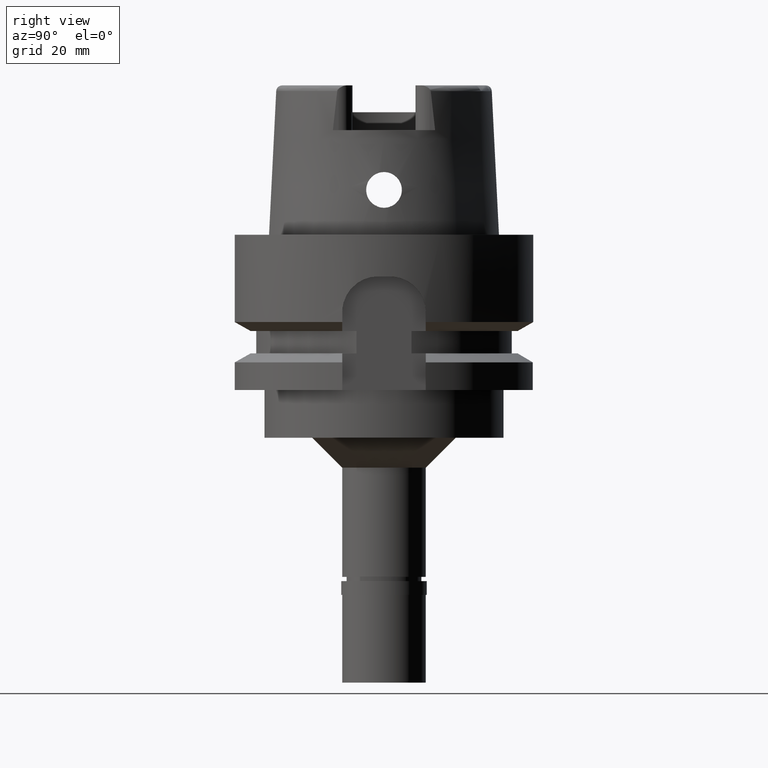
[diagram: clean part render]
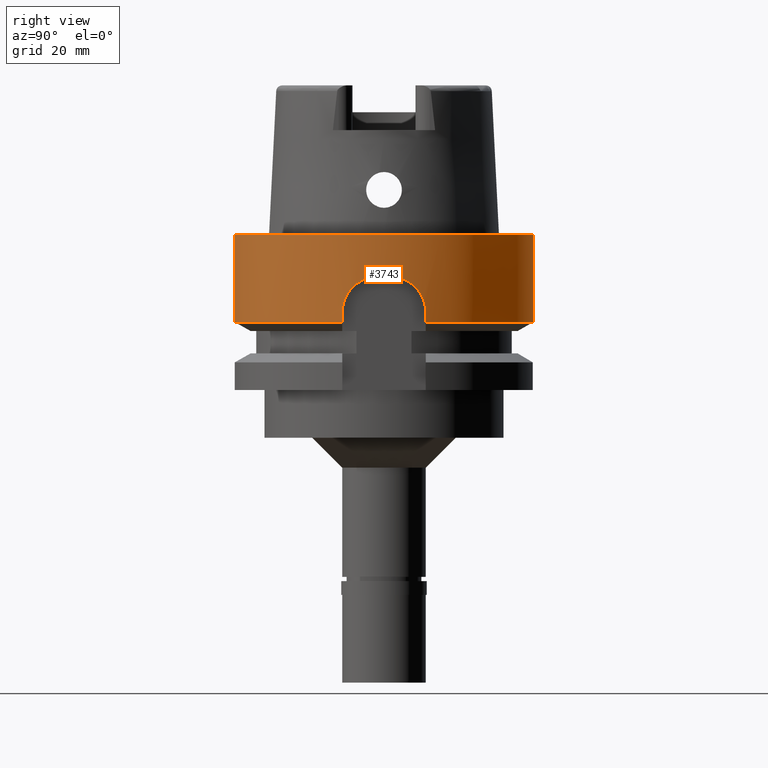
[diagram: same view with one face highlighted and labeled with its STEP entity id]
A machine part, right view. The second image highlights one B-rep face of the part: STEP entity #3743.
In plain terms, the highlighted cylindrical surface (partial cylindrical patch) has radius 25 mm, axis along (0, 0, 1).
Its self-contained STEP definition (entity closure, byte-faithful):
#35 = CARTESIAN_POINT ( 'NONE',  ( 24.49976834315936003, -4.975370415141710190, -8.505497914834512230 ) ) ;
#60 = CARTESIAN_POINT ( 'NONE',  ( 24.78681772240811299, -3.257869136187010017, -7.441025747308787963 ) ) ;
#89 = CARTESIAN_POINT ( 'NONE',  ( 24.44733996659402919, -5.227573510880964669, -8.742342618733047743 ) ) ;
#98 = CARTESIAN_POINT ( 'NONE',  ( 24.16478723087945824, 6.408940469442752530, -10.39574968277632649 ) ) ;
#111 = CARTESIAN_POINT ( 'NONE',  ( 24.73820855521864104, -3.612373743797532732, -7.594934771562349418 ) ) ;
#134 = CARTESIAN_POINT ( 'NONE',  ( 24.27475160664534570, -5.977999943536315364, -9.650441910935986911 ) ) ;
#143 = CARTESIAN_POINT ( 'NONE',  ( 24.07828217597917586, 6.726644984477383460, -11.20684726574168266 ) ) ;
#146 = EDGE_CURVE ( 'NONE', #4513, #2223, #3108, .T. ) ;
#165 = CARTESIAN_POINT ( 'NONE',  ( 24.57368201287003728, 4.595931759735846001, -8.195942548775592584 ) ) ;
#174 = CARTESIAN_POINT ( 'NONE',  ( 0.0000000000000000000, -25.00000000000000000, 1.705302565823999875E-13 ) ) ;
#188 = CARTESIAN_POINT ( 'NONE',  ( 24.73359756307678836, 3.640578850361009255, -7.611490110207105531 ) ) ;
#212 = CARTESIAN_POINT ( 'NONE',  ( 24.43139443800401622, 5.301625337286857587, -8.817129982764763341 ) ) ;
#234 = CARTESIAN_POINT ( 'NONE',  ( 24.25553976893024455, 6.055546427713103697, -9.768486157417470395 ) ) ;
#256 = CARTESIAN_POINT ( 'NONE',  ( 24.61707281500941136, 4.358870092586039746, -8.028280784630224431 ) ) ;
#279 = ORIENTED_EDGE ( 'NONE', *, *, #4540, .F. ) ;
#284 = CARTESIAN_POINT ( 'NONE',  ( 24.00000000000000000, -7.000000000000000000, -13.00000000000000000 ) ) ;
#337 = ORIENTED_EDGE ( 'NONE', *, *, #1914, .T. ) ;
#401 = CARTESIAN_POINT ( 'NONE',  ( 24.44492360378943019, -5.238863757831594192, -8.753584064928743302 ) ) ;
#422 = AXIS2_PLACEMENT_3D ( 'NONE', #1738, #4080, #3705 ) ;
#450 = CARTESIAN_POINT ( 'NONE',  ( 23.99999968298000042, 7.000001086911000314, -14.62249198428999897 ) ) ;
#479 = CARTESIAN_POINT ( 'NONE',  ( 24.62585658868001204, -4.308969540914367791, -7.994922160852345527 ) ) ;
#487 = CARTESIAN_POINT ( 'NONE',  ( 24.09100302957578776, 6.680690265659298355, -11.06416073426809632 ) ) ;
#563 = CARTESIAN_POINT ( 'NONE',  ( 24.61518663565398057, 4.369489492004123399, -8.035468269816069764 ) ) ;
#591 = CARTESIAN_POINT ( 'NONE',  ( 24.26752748322563136, 6.007260208036217186, -9.694343037379896444 ) ) ;
#613 = CARTESIAN_POINT ( 'NONE',  ( 24.39592589661699407, 5.462881369261142872, -8.989308958684217643 ) ) ;
#635 = CARTESIAN_POINT ( 'NONE',  ( 24.26182199742563128, 6.030283037842108840, -9.729439904414505236 ) ) ;
#726 = DIRECTION ( 'NONE',  ( 0.0000000000000000000, 1.000000000000000000, 0.0000000000000000000 ) ) ;
#775 = CARTESIAN_POINT ( 'NONE',  ( 24.44956991268546531, -5.217135162015882344, -8.731986590088190781 ) ) ;
#802 = CARTESIAN_POINT ( 'NONE',  ( 24.62240569863390149, -4.328644044090706799, -8.007993470213776277 ) ) ;
#813 = CARTESIAN_POINT ( 'NONE',  ( 24.12265226869237011, 6.564886857588037472, -10.75674444249928463 ) ) ;
#815 = ORIENTED_EDGE ( 'NONE', *, *, #1052, .T. ) ;
#828 = CARTESIAN_POINT ( 'NONE',  ( 24.27306196251224080, -5.984856610900561869, -9.660651245285290400 ) ) ;
#850 = CARTESIAN_POINT ( 'NONE',  ( 24.24254505024323336, -6.108586802424047946, -9.845801112750958595 ) ) ;
#877 = CARTESIAN_POINT ( 'NONE',  ( 24.68373649204560749, -3.964636135385804838, -7.782533813648766063 ) ) ;
#886 = CARTESIAN_POINT ( 'NONE',  ( 24.04175049385555951, 6.856984649559718648, -11.68346873648718365 ) ) ;
#892 = VERTEX_POINT ( 'NONE', #450 ) ;
#899 = CARTESIAN_POINT ( 'NONE',  ( 23.99999999999998934, -6.999999999999995559, -12.25822629758427240 ) ) ;
#915 = VERTEX_POINT ( 'NONE', #174 ) ;
#931 = CARTESIAN_POINT ( 'NONE',  ( 24.26635416346756102, 6.012001013920500903, -9.701532109083029098 ) ) ;
#956 = CARTESIAN_POINT ( 'NONE',  ( 24.95045872979395796, 1.737740693375197987, -6.999999999999998224 ) ) ;
#979 = CARTESIAN_POINT ( 'NONE',  ( 24.68007762913433467, 3.990162489318320294, -7.794382720648959761 ) ) ;
#1052 = EDGE_CURVE ( 'NONE', #2230, #2617, #4052, .T. ) ;
#1082 = EDGE_CURVE ( 'NONE', #1186, #1974, #1451, .T. ) ;
#1123 = CARTESIAN_POINT ( 'NONE',  ( 0.0000000000000000000, 0.0000000000000000000, -75.80000000000001137 ) ) ;
#1148 = CARTESIAN_POINT ( 'NONE',  ( 24.62937692026105196, -4.288813567630589851, -7.981629983207127133 ) ) ;
#1177 = CARTESIAN_POINT ( 'NONE',  ( 24.37503307411357056, -5.557040894337744952, -9.092058217912974527 ) ) ;
#1186 = VERTEX_POINT ( 'NONE', #1806 ) ;
#1203 = CARTESIAN_POINT ( 'NONE',  ( 24.82614997614106400, -2.944943980035183984, -7.322365542442169861 ) ) ;
#1204 = CARTESIAN_POINT ( 'NONE',  ( 0.0000000000000000000, 0.0000000000000000000, -14.62250092523999889 ) ) ;
#1224 = ORIENTED_EDGE ( 'NONE', *, *, #3748, .F. ) ;
#1228 = CARTESIAN_POINT ( 'NONE',  ( 24.69787554543405506, -3.875445489080989958, -7.732968586142576761 ) ) ;
#1276 = DIRECTION ( 'NONE',  ( 0.0000000000000000000, 0.0000000000000000000, 1.000000000000000000 ) ) ;
#1278 = CARTESIAN_POINT ( 'NONE',  ( 24.12982146092184266, -6.538473428260290987, -10.69230839568394487 ) ) ;
#1293 = VECTOR ( 'NONE', #2330, 1000.000000000000000 ) ;
#1301 = EDGE_CURVE ( 'NONE', #4513, #915, #3897, .T. ) ;
#1308 = CARTESIAN_POINT ( 'NONE',  ( 24.65013648081668762, 4.172038857600788297, -7.902149194659578768 ) ) ;
#1328 = CARTESIAN_POINT ( 'NONE',  ( 24.00000000000000000, 7.000000000000000000, -13.00000000000000000 ) ) ;
#1359 = CARTESIAN_POINT ( 'NONE',  ( 24.42363174021783223, 5.337355071070049028, -8.854056539304767881 ) ) ;
#1380 = CARTESIAN_POINT ( 'NONE',  ( 24.60485367648089650, 4.426901382991021983, -8.074867062834790943 ) ) ;
#1402 = CARTESIAN_POINT ( 'NONE',  ( 24.35643640996098114, 5.636867680233528688, -9.190926596500444745 ) ) ;
#1445 = DIRECTION ( 'NONE',  ( 0.0000000000000000000, 0.0000000000000000000, 1.000000000000000000 ) ) ;
#1451 = CIRCLE ( 'NONE', #422, 25.00000000000000000 ) ;
#1545 = ORIENTED_EDGE ( 'NONE', *, *, #3500, .F. ) ;
#1549 = CARTESIAN_POINT ( 'NONE',  ( 24.97999199359000144, -1.000000000000000000, -7.000000000000000000 ) ) ;
#1574 = CARTESIAN_POINT ( 'NONE',  ( 24.76231836123400143, -3.443036355120727698, -7.517123293938959172 ) ) ;
#1595 = CARTESIAN_POINT ( 'NONE',  ( 24.27343859005458526, -5.983328423445819055, -9.658374549124529196 ) ) ;
#1621 = CARTESIAN_POINT ( 'NONE',  ( 24.30007285430240671, -5.874493111050887784, -9.501256002420229052 ) ) ;
#1639 = CARTESIAN_POINT ( 'NONE',  ( 0.0000000000000000000, 0.0000000000000000000, -7.000000000000000000 ) ) ;
#1643 = CARTESIAN_POINT ( 'NONE',  ( 24.13578132908411078, -6.516449547820400312, -10.63998027985964256 ) ) ;
#1654 = CARTESIAN_POINT ( 'NONE',  ( 24.11626126291906047, 6.588376250135804746, -10.81569767662717751 ) ) ;
#1678 = CARTESIAN_POINT ( 'NONE',  ( 24.61631190345793385, 4.363160825889100813, -8.031181524561182172 ) ) ;
#1724 = CARTESIAN_POINT ( 'NONE',  ( 24.26453813046440189, 6.019330588570353413, -9.712696388589526109 ) ) ;
#1738 = CARTESIAN_POINT ( 'NONE',  ( 0.0000000000000000000, 0.0000000000000000000, -14.62250092523999889 ) ) ;
#1741 = CARTESIAN_POINT ( 'NONE',  ( 24.00000006376999906, -6.999999781360999762, -14.62250272373000115 ) ) ;
#1747 = CARTESIAN_POINT ( 'NONE',  ( 24.43531523308328701, 5.283503562752096094, -8.798608114580616757 ) ) ;
#1764 = AXIS2_PLACEMENT_3D ( 'NONE', #1639, #1276, #2742 ) ;
#1773 = CARTESIAN_POINT ( 'NONE',  ( 0.0000000000000000000, 25.00000000000000000, 1.042129345780999972E-13 ) ) ;
#1797 = AXIS2_PLACEMENT_3D ( 'NONE', #1204, #3075, #4594 ) ;
#1806 = CARTESIAN_POINT ( 'NONE',  ( 0.0000000000000000000, -25.00000000000000000, -14.62250092523999889 ) ) ;
#1818 = CARTESIAN_POINT ( 'NONE',  ( 24.00000000000000000, -7.000000000000000000, -13.00000000000000000 ) ) ;
#1842 = AXIS2_PLACEMENT_3D ( 'NONE', #4106, #3461, #4211 ) ;
#1895 = DIRECTION ( 'NONE',  ( 3.930346202659920987E-08, 1.347538642260972339E-07, -0.9999999999999901190 ) ) ;
#1914 = EDGE_CURVE ( 'NONE', #915, #1186, #3497, .T. ) ;
#1945 = CARTESIAN_POINT ( 'NONE',  ( 24.80539490120072443, -3.113606960106523935, -7.384190578092518109 ) ) ;
#1966 = CARTESIAN_POINT ( 'NONE',  ( 24.33197961779064400, -5.741531318263868755, -9.322019789458495964 ) ) ;
#1974 = VERTEX_POINT ( 'NONE', #1741 ) ;
#1983 = CARTESIAN_POINT ( 'NONE',  ( 0.0000000000000000000, 25.00000000000000000, -14.62250092523999889 ) ) ;
#1989 = CARTESIAN_POINT ( 'NONE',  ( 24.61099723569059705, -4.393543379025551587, -8.051277459780511236 ) ) ;
#1990 = ORIENTED_EDGE ( 'NONE', *, *, #146, .F. ) ;
#2011 = CARTESIAN_POINT ( 'NONE',  ( 24.48948730041317035, -5.026049424537584187, -8.550723678833557884 ) ) ;
#2035 = CARTESIAN_POINT ( 'NONE',  ( 24.13219255731635826, -6.529715590263100111, -10.67140086168156898 ) ) ;
#2067 = CARTESIAN_POINT ( 'NONE',  ( 24.75181184918648114, 3.514033535527325114, -7.551898564032934580 ) ) ;
#2093 = LINE ( 'NONE', #2879, #2972 ) ;
#2113 = CARTESIAN_POINT ( 'NONE',  ( 24.61684845404169764, 4.360136316353510288, -8.029136315259927770 ) ) ;
#2136 = CARTESIAN_POINT ( 'NONE',  ( 24.28899826368992265, 5.920446051620244177, -9.563067931018800039 ) ) ;
#2162 = CARTESIAN_POINT ( 'NONE',  ( 24.43700402658573267, 5.275681739750440968, -8.790658065680613475 ) ) ;
#2189 = DIRECTION ( 'NONE',  ( 1.953878942450914069E-07, -6.699020576297705651E-07, 0.9999999999997565281 ) ) ;
#2223 = VERTEX_POINT ( 'NONE', #1983 ) ;
#2230 = VERTEX_POINT ( 'NONE', #3513 ) ;
#2291 = CARTESIAN_POINT ( 'NONE',  ( 24.40770649510969292, -5.412418141144514472, -8.927047926510585540 ) ) ;
#2314 = CARTESIAN_POINT ( 'NONE',  ( 24.17953073293679012, -6.352578549610839787, -10.28712108126188163 ) ) ;
#2328 = CARTESIAN_POINT ( 'NONE',  ( 24.14366827936574822, 6.487500788033881527, -10.56698582146045773 ) ) ;
#2330 = DIRECTION ( 'NONE',  ( 0.0000000000000000000, 2.721175632404000057E-14, -1.000000000000000000 ) ) ;
#2342 = CARTESIAN_POINT ( 'NONE',  ( 24.78995961278983984, -3.233846546263416943, -7.431328938967872055 ) ) ;
#2365 = CARTESIAN_POINT ( 'NONE',  ( 24.31862124487821220, -5.797622612877629145, -9.395781934241842492 ) ) ;
#2385 = CARTESIAN_POINT ( 'NONE',  ( 24.66148583677253825, -4.100165809404503925, -7.862712081317833501 ) ) ;
#2433 = CIRCLE ( 'NONE', #1797, 25.00000000000000000 ) ;
#2444 = CARTESIAN_POINT ( 'NONE',  ( 24.61722114692511454, 4.358032612382026549, -8.027715089667053050 ) ) ;
#2532 = CARTESIAN_POINT ( 'NONE',  ( 24.77050569022696536, 3.379757843077887181, -7.492041238338908116 ) ) ;
#2617 = VERTEX_POINT ( 'NONE', #3777 ) ;
#2643 = CARTESIAN_POINT ( 'NONE',  ( 24.46485041803108729, -5.144988248992125257, -8.661616045563340194 ) ) ;
#2676 = CARTESIAN_POINT ( 'NONE',  ( 24.29117095121268832, -5.911111131118361506, -9.552703420486878372 ) ) ;
#2686 = CARTESIAN_POINT ( 'NONE',  ( 24.10755644803804643, 6.620288078691583422, -10.89837205391708608 ) ) ;
#2698 = CARTESIAN_POINT ( 'NONE',  ( 24.79464591641103155, -3.197799715232858109, -7.416914198815999448 ) ) ;
#2723 = CARTESIAN_POINT ( 'NONE',  ( 24.62282406644586885, -4.326263297490975823, -8.006406556889441362 ) ) ;
#2737 = AXIS2_PLACEMENT_3D ( 'NONE', #1123, #1445, #726 ) ;
#2742 = DIRECTION ( 'NONE',  ( 0.9991996797437435740, -0.04000000000000173556, 0.0000000000000000000 ) ) ;
#2744 = CARTESIAN_POINT ( 'NONE',  ( 24.59050670406340799, -4.507443829634865118, -8.127975246691514499 ) ) ;
#2766 = CARTESIAN_POINT ( 'NONE',  ( 24.12881043432524564, -6.542205126381874791, -10.70127699850182523 ) ) ;
#2797 = CARTESIAN_POINT ( 'NONE',  ( 24.52915569033836718, 4.829453847981345582, -8.376791580779887170 ) ) ;
#2827 = CARTESIAN_POINT ( 'NONE',  ( 24.77923755986355658, 3.315032852010245890, -7.464598822068242434 ) ) ;
#2834 = EDGE_CURVE ( 'NONE', #3584, #2617, #4609, .T. ) ;
#2875 = CARTESIAN_POINT ( 'NONE',  ( 24.77870431881740032, 3.319015853266849447, -7.466267501301959264 ) ) ;
#2879 = CARTESIAN_POINT ( 'NONE',  ( 23.99999968298000042, 7.000001086911000314, -14.62249198428999897 ) ) ;
#2900 = CARTESIAN_POINT ( 'NONE',  ( 24.37165516327134185, 5.570743180115432125, -9.111540438504757589 ) ) ;
#2942 = LINE ( 'NONE', #1818, #3932 ) ;
#2972 = VECTOR ( 'NONE', #2189, 1000.000000000000114 ) ;
#3013 = CARTESIAN_POINT ( 'NONE',  ( 24.89262747393343744, -2.317573422156474550, -7.143204667709824207 ) ) ;
#3042 = CARTESIAN_POINT ( 'NONE',  ( 24.87400152295493072, -2.510490911545676163, -7.189753839242210454 ) ) ;
#3054 = CARTESIAN_POINT ( 'NONE',  ( 24.05479752318541742, 6.810942333365714418, -11.49255606247847794 ) ) ;
#3072 = CARTESIAN_POINT ( 'NONE',  ( 24.63636059493613573, -4.248568909888609468, -7.955387760273475273 ) ) ;
#3075 = DIRECTION ( 'NONE',  ( 0.0000000000000000000, 0.0000000000000000000, 1.000000000000000000 ) ) ;
#3083 = CARTESIAN_POINT ( 'NONE',  ( 24.00000000000000355, 7.000000000000001776, -12.63209746117796684 ) ) ;
#3094 = CARTESIAN_POINT ( 'NONE',  ( 24.16816155303371616, -6.395594435115191878, -10.37388014400012004 ) ) ;
#3106 = CARTESIAN_POINT ( 'NONE',  ( 24.21310497976478615, 6.223440737563173286, -10.04598082697079064 ) ) ;
#3107 = VECTOR ( 'NONE', #3825, 1000.000000000000000 ) ;
#3108 = LINE ( 'NONE', #4304, #1293 ) ;
#3117 = CARTESIAN_POINT ( 'NONE',  ( 24.96538069015562655, -1.364990242893802774, -6.999999999999999112 ) ) ;
#3141 = CARTESIAN_POINT ( 'NONE',  ( 24.00000000000000000, -7.000000000000000000, -13.00000000000000000 ) ) ;
#3176 = CARTESIAN_POINT ( 'NONE',  ( 24.61272743350044578, 4.383262867383519001, -8.044830770065846792 ) ) ;
#3202 = CARTESIAN_POINT ( 'NONE',  ( 24.43848054169075823, 5.268837928141214988, -8.783716167202822334 ) ) ;
#3223 = CARTESIAN_POINT ( 'NONE',  ( 24.48929649709187117, 5.032987650092667131, -8.545336435594043323 ) ) ;
#3230 = ORIENTED_EDGE ( 'NONE', *, *, #3959, .T. ) ;
#3243 = CARTESIAN_POINT ( 'NONE',  ( 24.31366535679015328, 5.819547938857620117, -9.420854016106481765 ) ) ;
#3300 = ORIENTED_EDGE ( 'NONE', *, *, #2834, .F. ) ;
#3418 = CARTESIAN_POINT ( 'NONE',  ( 24.47320600132064428, -5.104874869050860298, -8.623781798497400786 ) ) ;
#3447 = CARTESIAN_POINT ( 'NONE',  ( 24.94171314731219269, -1.742768139782008729, -7.033384490436712433 ) ) ;
#3461 = DIRECTION ( 'NONE',  ( 0.0000000000000000000, 0.0000000000000000000, -1.000000000000000000 ) ) ;
#3474 = CARTESIAN_POINT ( 'NONE',  ( 24.65009999033842192, -4.168365403932450697, -7.904258713826113336 ) ) ;
#3483 = CARTESIAN_POINT ( 'NONE',  ( 24.00000000000000000, 7.000000000000000000, -13.00000000000000000 ) ) ;
#3492 = CARTESIAN_POINT ( 'NONE',  ( 24.14438002010751205, -6.484580447339119758, -10.56625903523403487 ) ) ;
#3497 = LINE ( 'NONE', #4199, #3107 ) ;
#3500 = EDGE_CURVE ( 'NONE', #2230, #4500, #4340, .T. ) ;
#3503 = CARTESIAN_POINT ( 'NONE',  ( 24.23299742397199452, 6.145266036469727133, -9.913111920183078851 ) ) ;
#3513 = CARTESIAN_POINT ( 'NONE',  ( 24.97999199359000144, -1.000000000000000000, -7.000000000000000000 ) ) ;
#3518 = CARTESIAN_POINT ( 'NONE',  ( 24.27673276566271454, -5.969956207684957938, -9.638497712923854266 ) ) ;
#3573 = CARTESIAN_POINT ( 'NONE',  ( 24.77531560787262777, 3.344244367403894191, -7.476891347498856533 ) ) ;
#3584 = VERTEX_POINT ( 'NONE', #1328 ) ;
#3630 = CARTESIAN_POINT ( 'NONE',  ( 24.76065389379578008, 3.451457553144660739, -7.523331722291497492 ) ) ;
#3651 = CARTESIAN_POINT ( 'NONE',  ( 24.58598037582424567, 4.529831524006007193, -8.147729167384982318 ) ) ;
#3705 = DIRECTION ( 'NONE',  ( 0.0000000000000000000, -1.000000000000000000, 0.0000000000000000000 ) ) ;
#3742 = FACE_OUTER_BOUND ( 'NONE', #4885, .T. ) ;
#3743 = ADVANCED_FACE ( 'NONE', ( #3742 ), #4567, .T. ) ;
#3748 = EDGE_CURVE ( 'NONE', #4500, #1974, #2942, .T. ) ;
#3777 = CARTESIAN_POINT ( 'NONE',  ( 24.97999199359000144, 1.000000000000000000, -7.000000000000000000 ) ) ;
#3795 = CARTESIAN_POINT ( 'NONE',  ( 24.78498248375256097, -3.271806069009314033, -7.446711263345870968 ) ) ;
#3821 = CARTESIAN_POINT ( 'NONE',  ( 24.15213585281093955, -6.455661196408868818, -10.50240173134683452 ) ) ;
#3825 = DIRECTION ( 'NONE',  ( 0.0000000000000000000, -2.721175632404000057E-14, -1.000000000000000000 ) ) ;
#3831 = CARTESIAN_POINT ( 'NONE',  ( 24.20051888872195534, 6.272180099515099805, -10.13402613803601326 ) ) ;
#3843 = CARTESIAN_POINT ( 'NONE',  ( 24.62408929932863089, -4.319055675043729003, -8.001611220507490074 ) ) ;
#3868 = CARTESIAN_POINT ( 'NONE',  ( 24.84266650670876331, -2.800091476036682181, -7.275508189497014833 ) ) ;
#3888 = CARTESIAN_POINT ( 'NONE',  ( 24.52889200145145665, -4.829796449056758867, -8.379487595151823953 ) ) ;
#3897 = CIRCLE ( 'NONE', #1842, 25.00000000000000000 ) ;
#3932 = VECTOR ( 'NONE', #1895, 1000.000000000000114 ) ;
#3951 = CARTESIAN_POINT ( 'NONE',  ( 24.61026183186203653, 4.396972691383817633, -8.054221656971833454 ) ) ;
#3959 = EDGE_CURVE ( 'NONE', #892, #2223, #2433, .T. ) ;
#3972 = CARTESIAN_POINT ( 'NONE',  ( 24.40842191413486617, 5.406781503401139943, -8.927407888853458928 ) ) ;
#4004 = ORIENTED_EDGE ( 'NONE', *, *, #1082, .T. ) ;
#4052 = CIRCLE ( 'NONE', #1764, 25.00000000000001066 ) ;
#4080 = DIRECTION ( 'NONE',  ( 0.0000000000000000000, 0.0000000000000000000, 1.000000000000000000 ) ) ;
#4106 = CARTESIAN_POINT ( 'NONE',  ( 0.0000000000000000000, 0.0000000000000000000, 1.705302565823999875E-13 ) ) ;
#4195 = CARTESIAN_POINT ( 'NONE',  ( 24.21569441190970906, -6.213897600369896246, -10.02434739211579817 ) ) ;
#4199 = CARTESIAN_POINT ( 'NONE',  ( 0.0000000000000000000, -25.00000000000000000, 1.042129345780999972E-13 ) ) ;
#4205 = CARTESIAN_POINT ( 'NONE',  ( 24.12008363479304407, 6.574331768324217506, -10.78031836276791289 ) ) ;
#4211 = DIRECTION ( 'NONE',  ( 0.0000000000000000000, 1.000000000000000000, 0.0000000000000000000 ) ) ;
#4219 = CARTESIAN_POINT ( 'NONE',  ( 24.62333036312928769, -4.323380021418713248, -8.004487190232891791 ) ) ;
#4247 = CARTESIAN_POINT ( 'NONE',  ( 24.54601514705090182, -4.741403708292910579, -8.308348356357258879 ) ) ;
#4255 = CARTESIAN_POINT ( 'NONE',  ( 24.12410043170422824, 6.559557626833067090, -10.74357697569963577 ) ) ;
#4289 = CARTESIAN_POINT ( 'NONE',  ( 24.04249416390111449, -6.860531634964551984, -11.47342846683636886 ) ) ;
#4304 = CARTESIAN_POINT ( 'NONE',  ( 0.0000000000000000000, 25.00000000000000000, 1.042129345780999972E-13 ) ) ;
#4324 = CARTESIAN_POINT ( 'NONE',  ( 24.61711160898831352, 4.358651748939175619, -8.028132998981492463 ) ) ;
#4340 = B_SPLINE_CURVE_WITH_KNOTS ( 'NONE', 3,
 ( #1549, #3117, #3447, #3013, #3042, #3868, #1203, #1945, #2698, #2342, #60, #3795, #1574, #111, #1228, #877, #2385, #3474, #3072, #1148, #479, #3843, #4219, #2723, #802, #1989, #2744, #4247, #3888, #35, #2011, #3418, #2643, #4563, #775, #89, #4637, #401, #2291, #1177, #1966, #2365, #1621, #2676, #4591, #3518, #134, #1595, #828, #850, #4195, #2314, #3094, #3821, #3492, #1643, #2035, #1278, #2766, #4289, #899, #3141 ),
 .UNSPECIFIED., .F., .F.,
 ( 4, 2, 2, 1, 1, 1, 2, 2, 2, 2, 1, 1, 1, 1, 1, 2, 2, 2, 2, 2, 1, 1, 1, 2, 2, 2, 2, 1, 1, 1, 2, 2, 2, 2, 1, 1, 2, 2, 4 ),
 ( 0.0000000000000000000, 0.1249999999999628630, 0.1874999999999443778, 0.2187499999999351075, 0.2343749999999305833, 0.2421874999999283351, 0.2460937499999272249, 0.2499999999999261147, 0.3124999999999095723, 0.3437499999999014677, 0.3593749999998974154, 0.3671874999998955280, 0.3710937499998945288, 0.3730468749998940292, 0.3740234374998936961, 0.3745117187498934186, 0.3749999999998930855, 0.4374999999999019673, 0.4687499999999064082, 0.4843749999999085176, 0.4921874999999097944, 0.4960937499999104605, 0.4980468749999106270, 0.4990234374999106826, 0.4999999999999107381, 0.5624999999999168443, 0.5937499999999199529, 0.6093749999999213962, 0.6171874999999219513, 0.6210937499999225064, 0.6230468749999229505, 0.6249999999999232836, 0.6874999999999369393, 0.7187499999999439337, 0.7343749999999475975, 0.7421874999999491518, 0.7460937499999499289, 0.7499999999999508171, 1.000000000000000000 ),
 .UNSPECIFIED. ) ;
#4352 = CARTESIAN_POINT ( 'NONE',  ( 24.43813176731050518, 5.270454858607028115, -8.785355393362960896 ) ) ;
#4372 = CARTESIAN_POINT ( 'NONE',  ( 24.24319697298635745, 6.104912477729429021, -9.846477991672161423 ) ) ;
#4418 = CARTESIAN_POINT ( 'NONE',  ( 24.77735214817006693, 3.329097439097658651, -7.470503186180631694 ) ) ;
#4500 = VERTEX_POINT ( 'NONE', #284 ) ;
#4513 = VERTEX_POINT ( 'NONE', #1773 ) ;
#4540 = EDGE_CURVE ( 'NONE', #892, #3584, #2093, .T. ) ;
#4563 = CARTESIAN_POINT ( 'NONE',  ( 24.45472610347581011, -5.192908628005697302, -8.708127192692202811 ) ) ;
#4567 = CYLINDRICAL_SURFACE ( 'NONE', #2737, 25.00000000000000000 ) ;
#4591 = CARTESIAN_POINT ( 'NONE',  ( 24.28143690895488049, -5.950827782258572007, -9.610313331516703528 ) ) ;
#4594 = DIRECTION ( 'NONE',  ( 0.9599999999999999645, 0.2800000000000000266, 0.0000000000000000000 ) ) ;
#4609 = B_SPLINE_CURVE_WITH_KNOTS ( 'NONE', 3,
 ( #3483, #3083, #4646, #886, #3054, #143, #487, #2686, #1654, #4205, #813, #4255, #2328, #98, #3831, #3106, #3503, #4372, #234, #635, #1724, #931, #591, #2136, #3243, #1402, #2900, #613, #3972, #1359, #212, #1747, #2162, #4352, #3202, #3223, #2797, #165, #3651, #4760, #1380, #3951, #3176, #563, #1678, #2113, #256, #2444, #4324, #1308, #979, #4691, #188, #2067, #3630, #2532, #3573, #4418, #2875, #2827, #4716, #956, #4738 ),
 .UNSPECIFIED., .F., .F.,
 ( 4, 2, 2, 1, 1, 1, 2, 2, 2, 2, 1, 1, 1, 2, 2, 2, 2, 1, 1, 1, 1, 2, 2, 2, 2, 2, 1, 1, 1, 1, 2, 2, 2, 2, 1, 1, 1, 2, 2, 4 ),
 ( 0.0000000000000000000, 0.1250000000000484057, 0.1875000000000723033, 0.2187500000000842659, 0.2343750000000902056, 0.2421875000000931755, 0.2460937500000943967, 0.2500000000000956457, 0.3125000000001189604, 0.3437500000001306177, 0.3593750000001364464, 0.3671875000001392220, 0.3710937500001404432, 0.3730468750001410538, 0.3750000000001417200, 0.4375000000001539879, 0.4687500000001599276, 0.4843750000001629252, 0.4921875000001642575, 0.4960937500001651457, 0.4980468750001655898, 0.4990234375001657563, 0.5000000000001658673, 0.5625000000001725287, 0.5937500000001757483, 0.6093750000001771916, 0.6171875000001777467, 0.6210937500001775247, 0.6230468750001779688, 0.6240234375001784128, 0.6245117187501781908, 0.6250000000001780798, 0.6875000000001469935, 0.7187500000001313394, 0.7343750000001233458, 0.7421875000001193490, 0.7460937500001172396, 0.7480468750001162404, 0.7500000000001152411, 1.000000000000000000 ),
 .UNSPECIFIED. ) ;
#4637 = CARTESIAN_POINT ( 'NONE',  ( 24.44584885808008679, -5.234544582213259467, -8.749275785538692674 ) ) ;
#4646 = CARTESIAN_POINT ( 'NONE',  ( 24.01043762346388633, 6.966069233835817442, -12.25427021715845122 ) ) ;
#4691 = CARTESIAN_POINT ( 'NONE',  ( 24.72074777648225918, 3.726803257931614155, -7.654494903619054824 ) ) ;
#4716 = CARTESIAN_POINT ( 'NONE',  ( 24.88381080031006576, 2.531489689962569400, -7.137912180943149387 ) ) ;
#4738 = CARTESIAN_POINT ( 'NONE',  ( 24.97999199359000144, 1.000000000000000000, -7.000000000000000000 ) ) ;
#4760 = CARTESIAN_POINT ( 'NONE',  ( 24.60061230342103045, 4.450201372295685687, -8.091113039003932528 ) ) ;
#4814 = ORIENTED_EDGE ( 'NONE', *, *, #1301, .T. ) ;
#4885 = EDGE_LOOP ( 'NONE', ( #815, #3300, #279, #3230, #1990, #4814, #337, #4004, #1224, #1545 ) ) ;